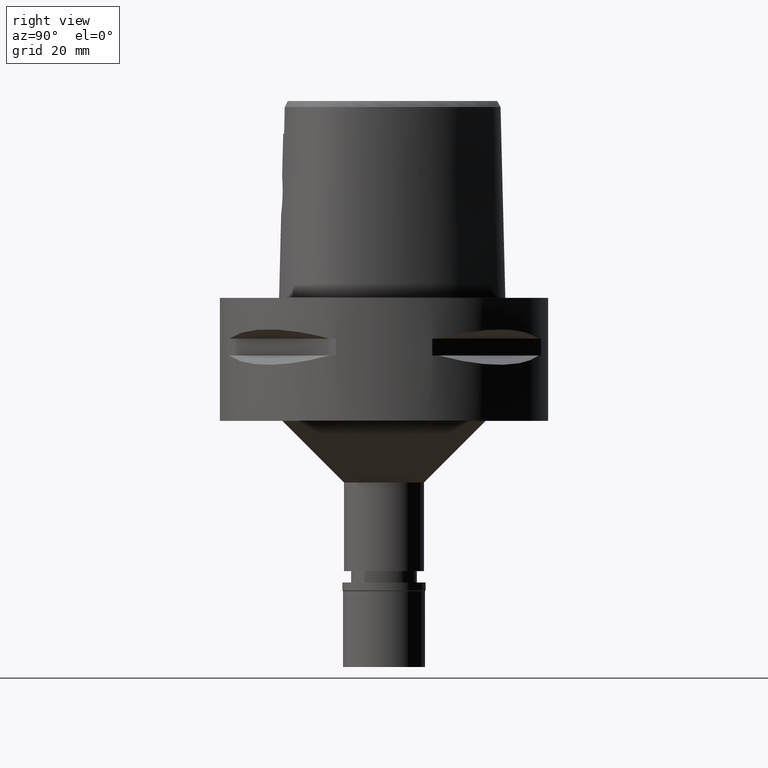
[diagram: clean part render]
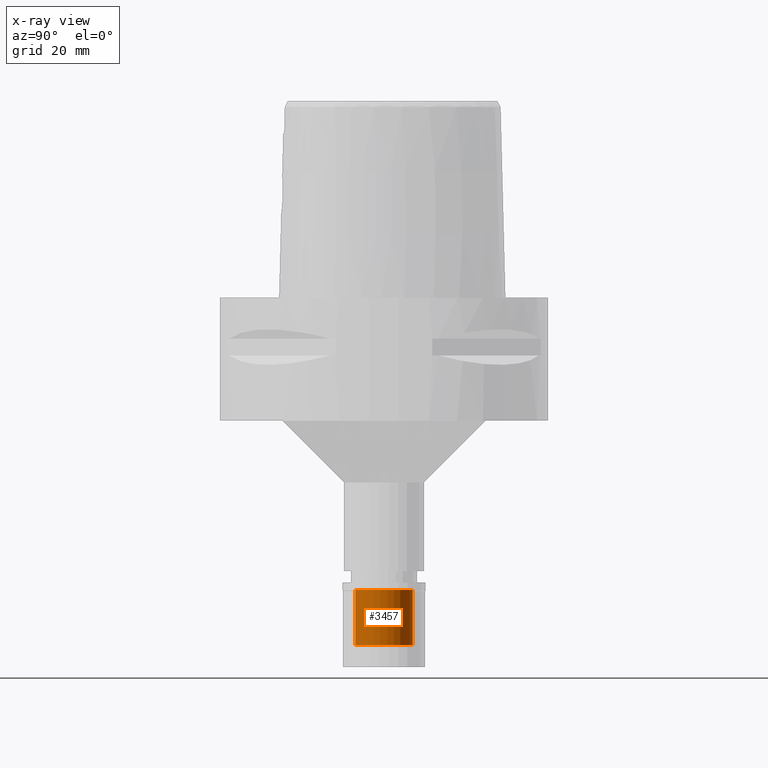
[diagram: x-ray — body ghosted, one internal face saturated and labeled with its STEP entity id]
A machine part, right view, then the same camera in x-ray: the body is ghosted and one INTERNAL B-rep face — a face not visible from any outside direction — is saturated and labeled: STEP entity #3457.
In plain terms, the highlighted cylindrical surface (edge-blend (fillet) strip) has radius 7 mm, axis along (0, 0, -1).
Its self-contained STEP definition (entity closure, byte-faithful):
#68 = ORIENTED_EDGE ( 'NONE', *, *, #1486, .F. ) ;
#159 = CIRCLE ( 'NONE', #421, 7.000000000000000000 ) ;
#163 = VECTOR ( 'NONE', #4005, 1000.000000000000000 ) ;
#294 = DIRECTION ( 'NONE',  ( 0.0000000000000000000, 0.0000000000000000000, -1.000000000000000000 ) ) ;
#421 = AXIS2_PLACEMENT_3D ( 'NONE', #1046, #2177, #3378 ) ;
#718 = CYLINDRICAL_SURFACE ( 'NONE', #2406, 7.000000000000000000 ) ;
#916 = ORIENTED_EDGE ( 'NONE', *, *, #3394, .T. ) ;
#962 = CARTESIAN_POINT ( 'NONE',  ( 0.0000000000000000000, 0.0000000000000000000, -1.800000000000000044 ) ) ;
#1027 = VERTEX_POINT ( 'NONE', #4781 ) ;
#1046 = CARTESIAN_POINT ( 'NONE',  ( 0.0000000000000000000, 0.0000000000000000000, -15.29999999999999893 ) ) ;
#1111 = CARTESIAN_POINT ( 'NONE',  ( 0.0000000000000000000, 0.0000000000000000000, 0.0000000000000000000 ) ) ;
#1142 = DIRECTION ( 'NONE',  ( 0.0000000000000000000, -1.000000000000000000, 0.0000000000000000000 ) ) ;
#1486 = EDGE_CURVE ( 'NONE', #1953, #3784, #4799, .T. ) ;
#1609 = ORIENTED_EDGE ( 'NONE', *, *, #2635, .T. ) ;
#1791 = ORIENTED_EDGE ( 'NONE', *, *, #4664, .T. ) ;
#1912 = VECTOR ( 'NONE', #4896, 1000.000000000000000 ) ;
#1953 = VERTEX_POINT ( 'NONE', #2237 ) ;
#2148 = AXIS2_PLACEMENT_3D ( 'NONE', #962, #2521, #4186 ) ;
#2177 = DIRECTION ( 'NONE',  ( 0.0000000000000000000, 0.0000000000000000000, -1.000000000000000000 ) ) ;
#2232 = FACE_OUTER_BOUND ( 'NONE', #4264, .T. ) ;
#2237 = CARTESIAN_POINT ( 'NONE',  ( 0.0000000000000000000, 7.000000000000000000, -15.29999999999999893 ) ) ;
#2386 = CARTESIAN_POINT ( 'NONE',  ( 0.0000000000000000000, 7.000000000000000000, -1.800000000000000044 ) ) ;
#2406 = AXIS2_PLACEMENT_3D ( 'NONE', #1111, #294, #1142 ) ;
#2521 = DIRECTION ( 'NONE',  ( 0.0000000000000000000, 0.0000000000000000000, 1.000000000000000000 ) ) ;
#2571 = VERTEX_POINT ( 'NONE', #4129 ) ;
#2635 = EDGE_CURVE ( 'NONE', #1953, #2571, #159, .T. ) ;
#3378 = DIRECTION ( 'NONE',  ( 0.0000000000000000000, 1.000000000000000000, 0.0000000000000000000 ) ) ;
#3394 = EDGE_CURVE ( 'NONE', #1027, #3784, #4531, .T. ) ;
#3400 = LINE ( 'NONE', #3786, #1912 ) ;
#3457 = ADVANCED_FACE ( 'NONE', ( #2232 ), #718, .F. ) ;
#3784 = VERTEX_POINT ( 'NONE', #2386 ) ;
#3786 = CARTESIAN_POINT ( 'NONE',  ( 0.0000000000000000000, -7.000000000000000000, -15.29999999999999893 ) ) ;
#4005 = DIRECTION ( 'NONE',  ( 0.0000000000000000000, 0.0000000000000000000, 1.000000000000000000 ) ) ;
#4129 = CARTESIAN_POINT ( 'NONE',  ( 0.0000000000000000000, -7.000000000000000000, -15.29999999999999893 ) ) ;
#4186 = DIRECTION ( 'NONE',  ( 0.0000000000000000000, -1.000000000000000000, 0.0000000000000000000 ) ) ;
#4264 = EDGE_LOOP ( 'NONE', ( #1609, #1791, #916, #68 ) ) ;
#4531 = CIRCLE ( 'NONE', #2148, 7.000000000000000000 ) ;
#4664 = EDGE_CURVE ( 'NONE', #2571, #1027, #3400, .T. ) ;
#4723 = CARTESIAN_POINT ( 'NONE',  ( 0.0000000000000000000, 7.000000000000000000, -15.29999999999999893 ) ) ;
#4781 = CARTESIAN_POINT ( 'NONE',  ( 0.0000000000000000000, -7.000000000000000000, -1.800000000000000044 ) ) ;
#4799 = LINE ( 'NONE', #4723, #163 ) ;
#4896 = DIRECTION ( 'NONE',  ( 0.0000000000000000000, 0.0000000000000000000, 1.000000000000000000 ) ) ;